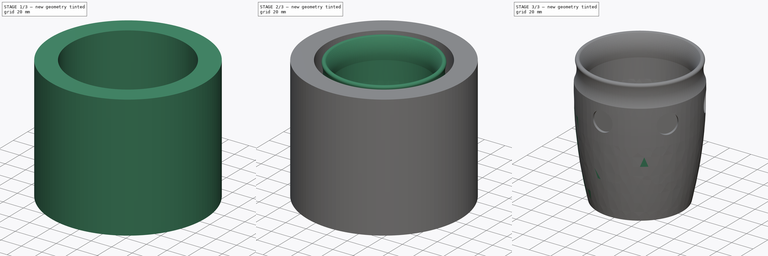
[diagram: build sequence overview — one tinted view per stage of 3, left to right]
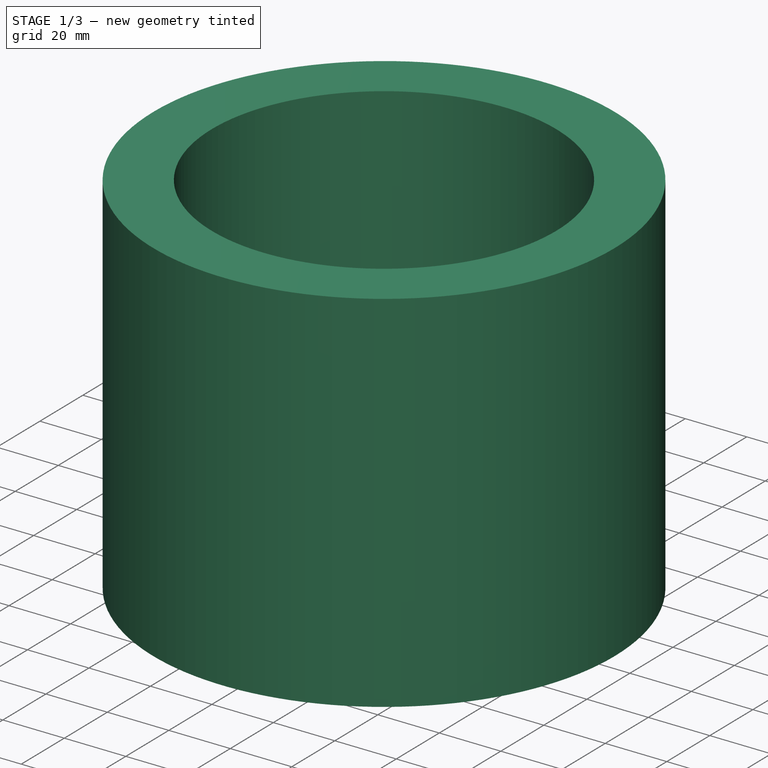
[diagram: stage 1 of 3 — iso view after this stage's code; geometry added in this stage tinted green]
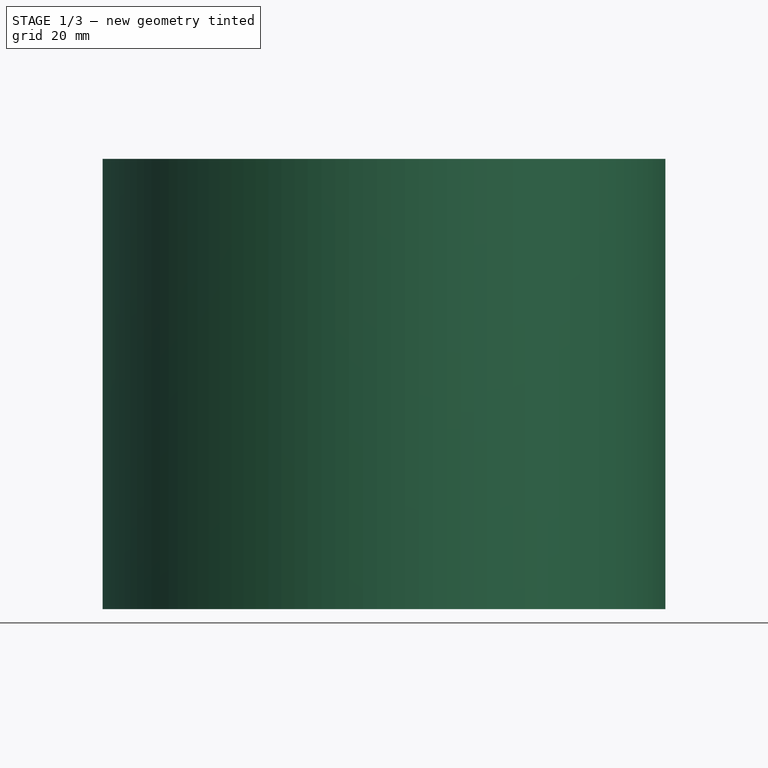
[diagram: stage 1 of 3 — front view after this stage's code; geometry added in this stage tinted green]
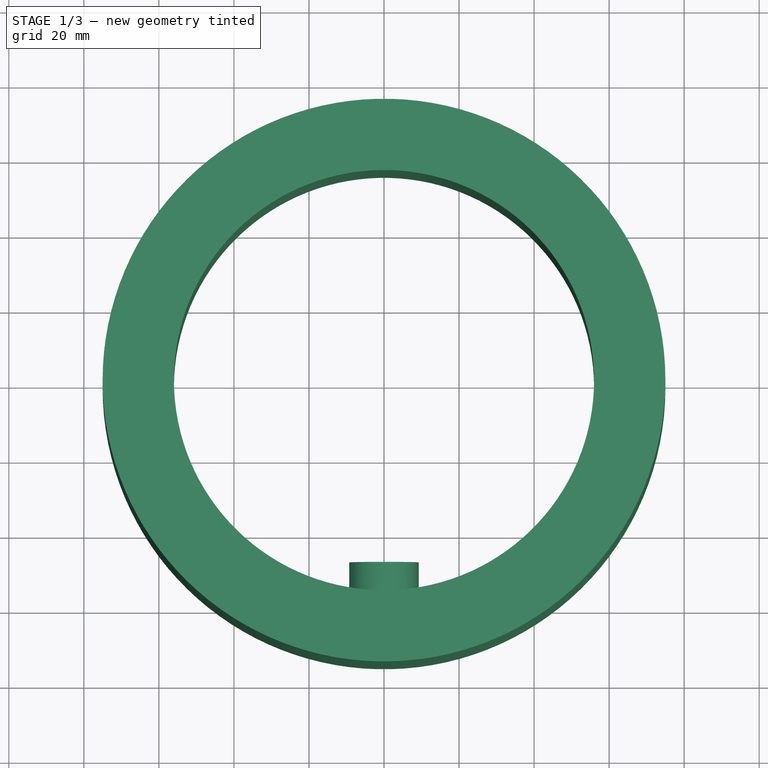
[diagram: stage 1 of 3 — top view after this stage's code; geometry added in this stage tinted green]
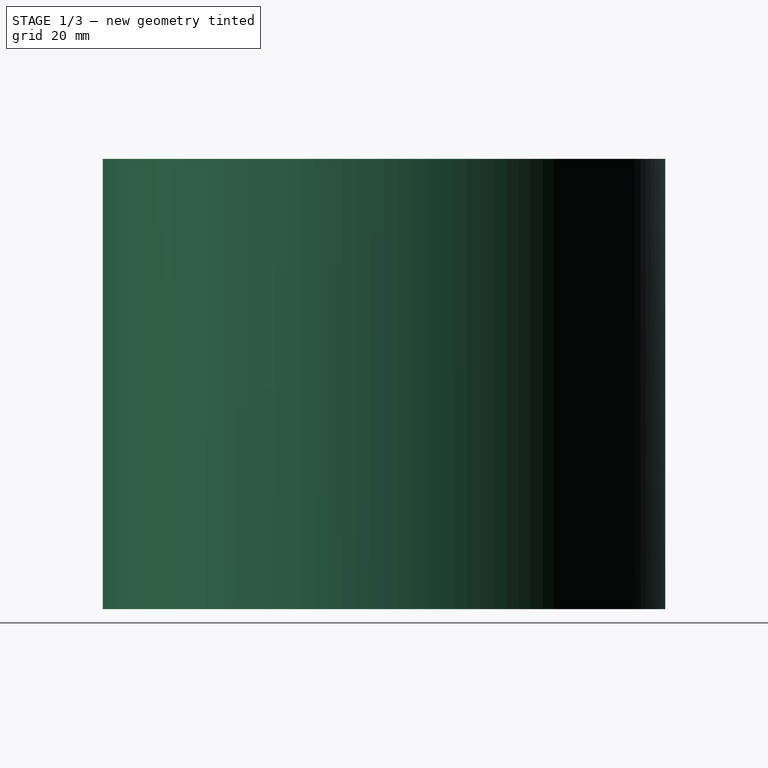
[diagram: stage 1 of 3 — right view after this stage's code; geometry added in this stage tinted green]
FCSTD DOCUMENT  (FreeCAD 0.19R22164 (Git))
Label: mug_test_001
License: All rights reserved
LicenseURL: http://en.wikipedia.org/wiki/All_rights_reserved
objects: Sketcher::SketchObject×3, PartDesign::Pad×2, PartDesign::Body×2, PartDesign::Revolution×1, PartDesign::PolarPattern×1, PartDesign::Boolean×1, PartDesign::Thickness×1
note: 15 computed .brp shape members not serialized (recipe doc carries the construction recipe); baked Part::Feature solids carry a one-line shape summary decoded from their .brp

FEATURE [Sketcher::SketchObject] Sketch001
  AttachmentOffset = pos=(0,0,60) rot=(0,0,1;0rad)
  MapMode = 5
  Placement = pos=(0,-60,-1.33e-14) rot=(1,0,0;1.5708rad)
  Support = -> [XZ_Plane001]
  sketch-geometry (1):
    g0: Circle CenterX=0 CenterY=84.8438 CenterZ=0 NormalX=0 NormalY=0 NormalZ=1 AngleXU=0 Radius=9.26107
  constraints (1):
    c: PointOnObject(g0,g-2)
FEATURE [Sketcher::SketchObject] Sketch002
  MapMode = 5
  Support = -> [XY_Plane001]
  sketch-geometry (2):
    g0: Circle CenterX=0 CenterY=0 CenterZ=0 NormalX=0 NormalY=0 NormalZ=1 AngleXU=0 Radius=75
    g1: Circle CenterX=0 CenterY=0 CenterZ=0 NormalX=0 NormalY=0 NormalZ=1 AngleXU=0 Radius=56
  constraints (4):
    c: Coincident(g0,g-1)
    c: Coincident(g1,g0)
    c: Radius(g1) = 56
    c: Radius(g0) = 75
FEATURE [PartDesign::Pad] Pad
  Length = 12
  Length2 = 100
  Placement = pos=(0,0,0) rot=(1,0,0;1.5708rad)
  Profile = -> Sketch001
  Reversed = true
  Type = 0
FEATURE [PartDesign::Pad] Pad001
  BaseFeature = -> Pad
  Length = 120
  Length2 = 100
  Placement = pos=(0,0,0) rot=(1,0,0;1.5708rad)
  Profile = -> Sketch002
  Type = 0
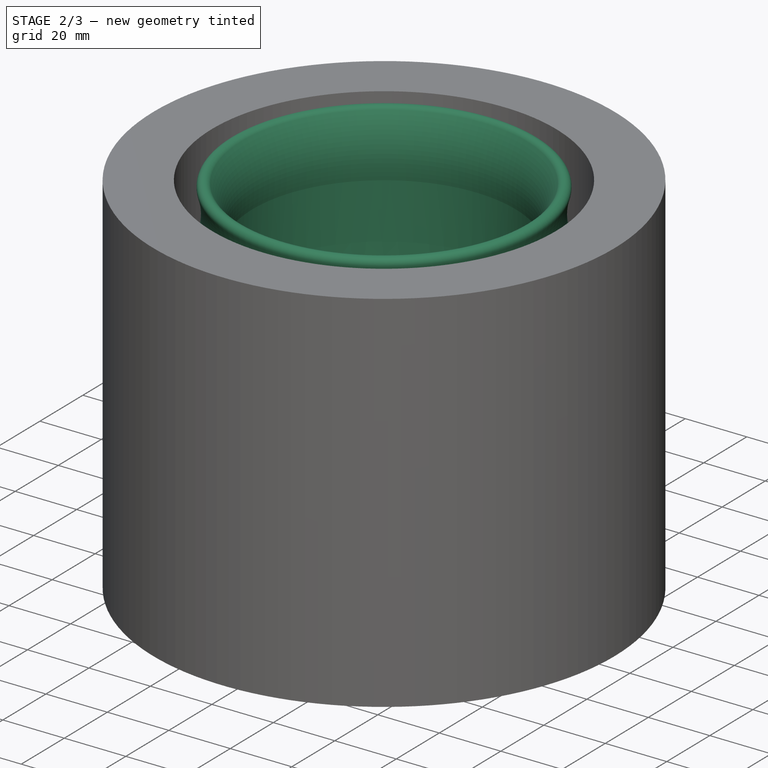
[diagram: stage 2 of 3 — iso view after this stage's code; geometry added in this stage tinted green]
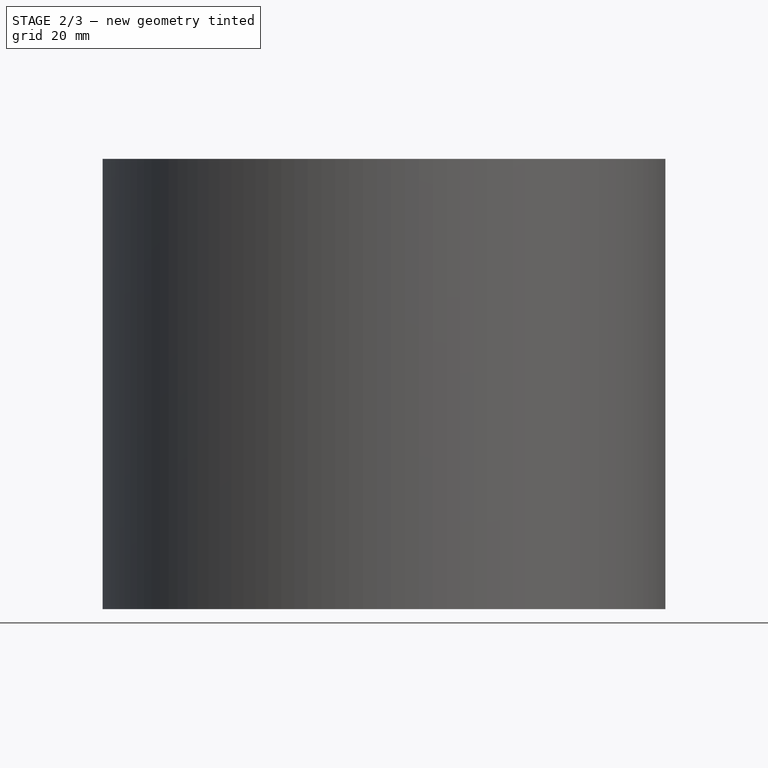
[diagram: stage 2 of 3 — front view after this stage's code; geometry added in this stage tinted green]
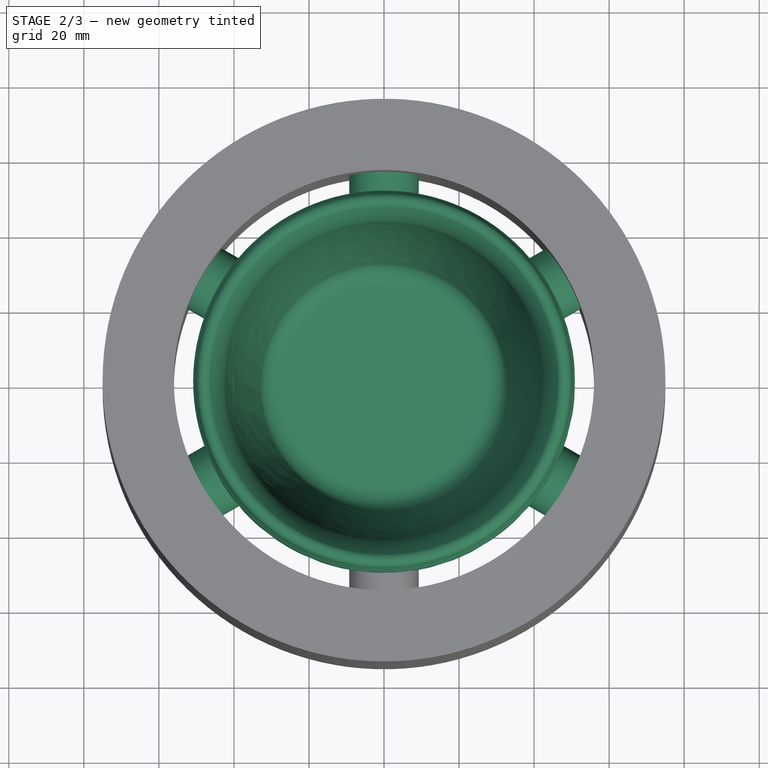
[diagram: stage 2 of 3 — top view after this stage's code; geometry added in this stage tinted green]
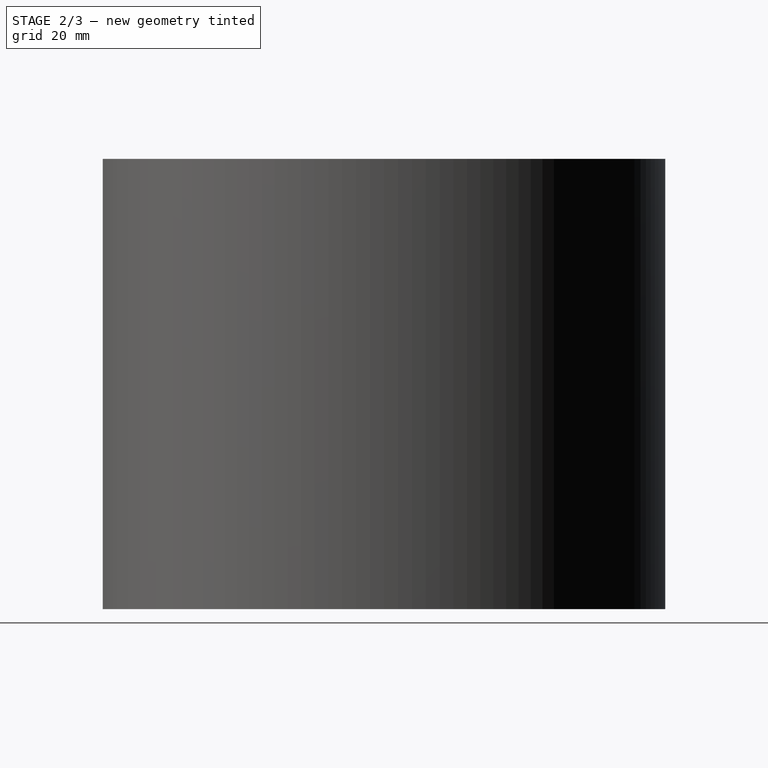
[diagram: stage 2 of 3 — right view after this stage's code; geometry added in this stage tinted green]
FEATURE [Sketcher::SketchObject] Sketch
  MapMode = 5
  Placement = pos=(0,0,0) rot=(1,0,0;1.5708rad)
  Support = -> [XZ_Plane]
  sketch-geometry (11):
    g0: ArcOfCircle CenterX=-349.062 CenterY=92.9007 CenterZ=0 NormalX=0 NormalY=0 NormalZ=1 AngleXU=0 Radius=400 StartAngle=6.04879 EndAngle=6.30093
    g1: ArcOfCircle CenterX=73.7876 CenterY=110 CenterZ=0 NormalX=0 NormalY=0 NormalZ=1 AngleXU=0 Radius=25 StartAngle=2.84078 EndAngle=3.55311
    g2: LineSegment [constr] StartX=0 StartY=120 StartZ=0 EndX=56 EndY=120 EndZ=0
    g3: ArcOfCircle CenterX=68.7503 CenterY=105 CenterZ=0 NormalX=0 NormalY=0 NormalZ=1 AngleXU=0 Radius=26.4862 StartAngle=2.58192 EndAngle=3.33151
    g4: ArcOfCircle CenterX=48 CenterY=118 CenterZ=0 NormalX=0 NormalY=0 NormalZ=1 AngleXU=0 Radius=2 StartAngle=5.98237 EndAngle=8.8651
    g5: LineSegment [constr] StartX=50 StartY=122.03 StartZ=0 EndX=50 EndY=114.486 EndZ=0
    g6: ArcOfCircle CenterX=-357.26 CenterY=100.066 CenterZ=0 NormalX=0 NormalY=0 NormalZ=1 AngleXU=0 Radius=400 StartAngle=6.06037 EndAngle=6.28302
    g7: LineSegment StartX=0 StartY=7 StartZ=0 EndX=27 EndY=7 EndZ=0
    g8: ArcOfCircle CenterX=27 CenterY=13 CenterZ=0 NormalX=0 NormalY=0 NormalZ=1 AngleXU=0 Radius=6 StartAngle=4.71239 EndAngle=6.06037
    g9: LineSegment StartX=40 StartY=1.137e-13 StartZ=0 EndX=0 EndY=1.137e-13 EndZ=0
    g10: LineSegment StartX=0 StartY=1.137e-13 StartZ=0 EndX=0 EndY=7 EndZ=0
  constraints (35):
    c: Radius(g0) = 400
    c: DistanceY(g0,g-1) = 0
    c: DistanceX(g-1,g0) = 40
    c: Radius(g1) = 25
    c: DistanceY(g-1,g1) = 110
    c: PointOnObject(g2,g-2)
    c: Horizontal(g2)
    c: DistanceY(g-1,g2) = 120
    c: Coincident(g1,g0)
    c: DistanceY(g-1,g0) = 100
    c: Coincident(g1,g4)
    c: Tangent(g4,g1)
    c: Tangent(g4,g3)
    c: Coincident(g3,g4)
    c: Tangent(g4,g2)
    c: Vertical(g5)
    c: Tangent(g4,g5)
    c: DistanceX(g2,g5) = 50
    c: Radius(g4) = 2
    c: Equal(g0,g6) = 400
    c: PointOnObject(g7,g-2)
    c: Horizontal(g7)
    c: DistanceY(g-1,g7) = 7
    c: Tangent(g7,g8) = -1.5708
    c: Tangent(g6,g8) = -1.5708
    c: Coincident(g9,g0)
    c: Horizontal(g9)
    c: Coincident(g10,g9)
    c: Coincident(g10,g7)
    c: Coincident(g6,g3)
    c: DistanceY(g9,g3) = 100
    c: Radius(g8) = 6
    c: Vertical(g10)
    c: DistanceY(g9,g3) = 105
    c: DistanceX(g8) = 27
FEATURE [PartDesign::Revolution] Revolution
  Angle = 360
  Axis = (0,2e-16,1)
  Base = (0,0,0)
  Placement = pos=(0,0,0) rot=(1,0,0;1.5708rad)
  Profile = -> Sketch
  ReferenceAxis = -> Sketch [V_Axis]
  Reversed = true
FEATURE [PartDesign::PolarPattern] PolarPattern
  Angle = 360
  Axis = -> Z_Axis001
  BaseFeature = -> Pad001
  Occurrences = 6
  Originals = -> [Pad]
  Placement = pos=(0,0,0) rot=(1,0,0;1.5708rad)
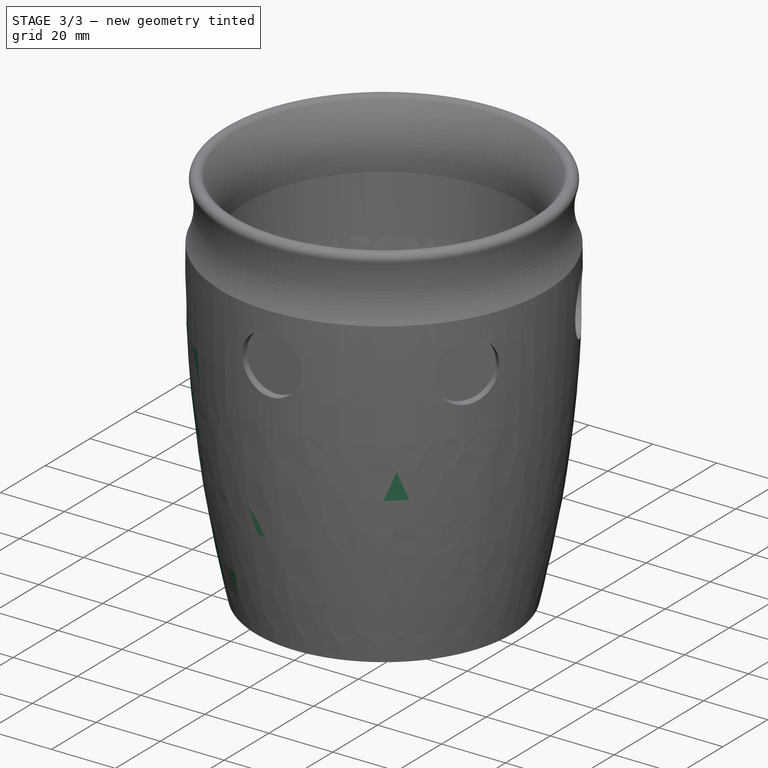
[diagram: stage 3 of 3 — iso view after this stage's code; geometry added in this stage tinted green]
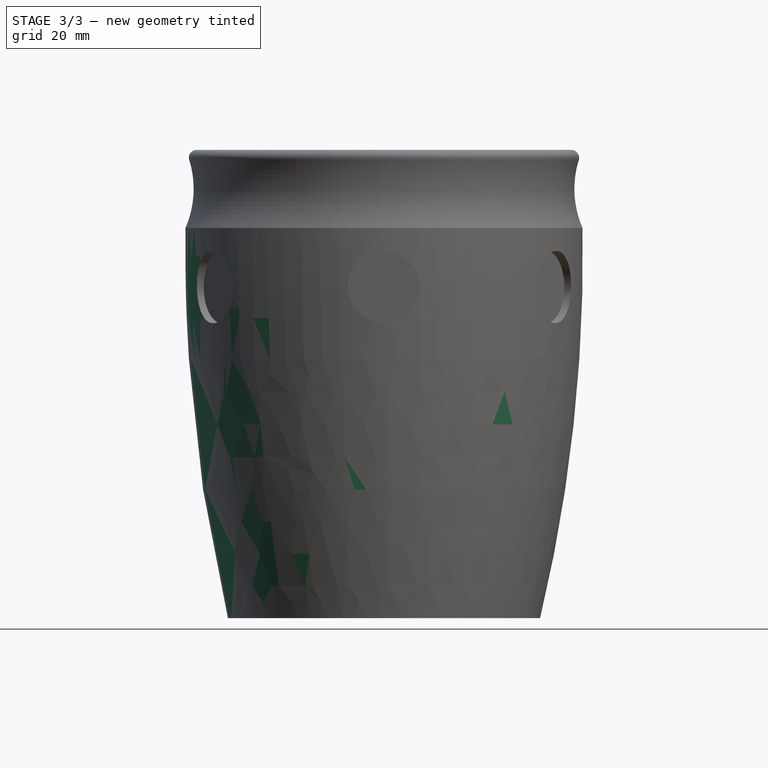
[diagram: stage 3 of 3 — front view after this stage's code; geometry added in this stage tinted green]
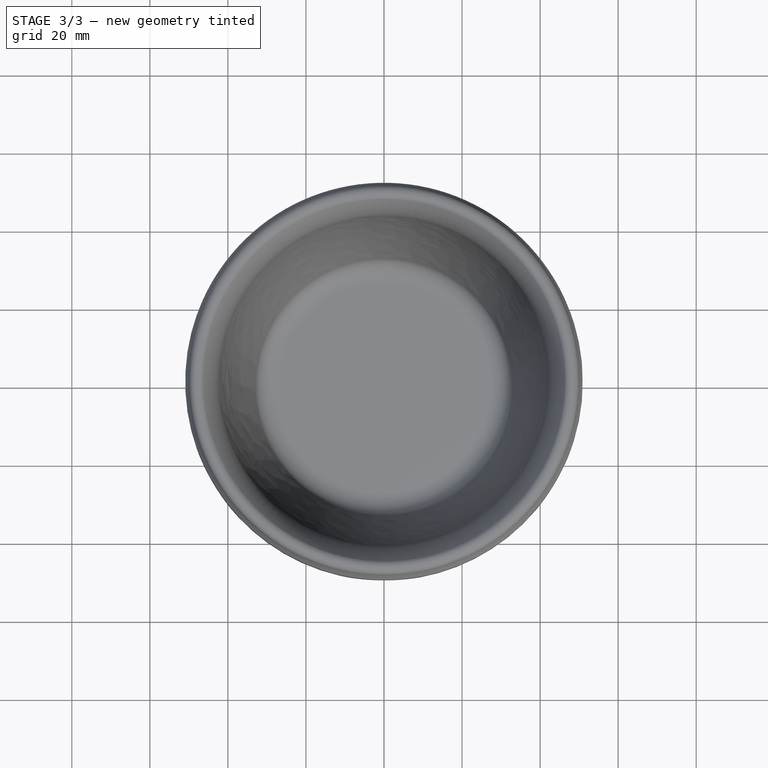
[diagram: stage 3 of 3 — top view after this stage's code; geometry added in this stage tinted green]
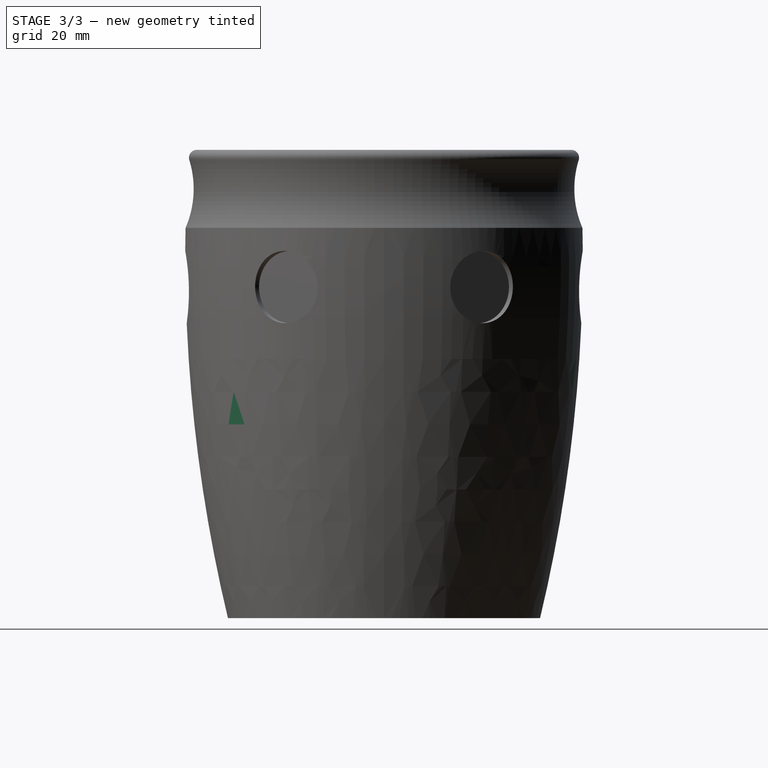
[diagram: stage 3 of 3 — right view after this stage's code; geometry added in this stage tinted green]
FEATURE [PartDesign::Body] Body001
  Group = -> [Sketch002,Sketch001,Pad,Pad001,PolarPattern]
  Origin = -> Origin001
  Tip = -> PolarPattern
FEATURE [PartDesign::Boolean] Boolean
  BaseFeature = -> Revolution
  Group = -> [Body001]
  Type = 1
FEATURE [PartDesign::Thickness] Thickness
  Base = -> Boolean [Face3]
  BaseFeature = -> Boolean
  Intersection = false
  Join = 0
  Mode = 0
  Reversed = true
  SupportTransform = false
  Value = 1
FEATURE [PartDesign::Body] Body
  Group = -> [Sketch,Revolution,Boolean,Thickness]
  Origin = -> Origin
  Tip = -> Thickness
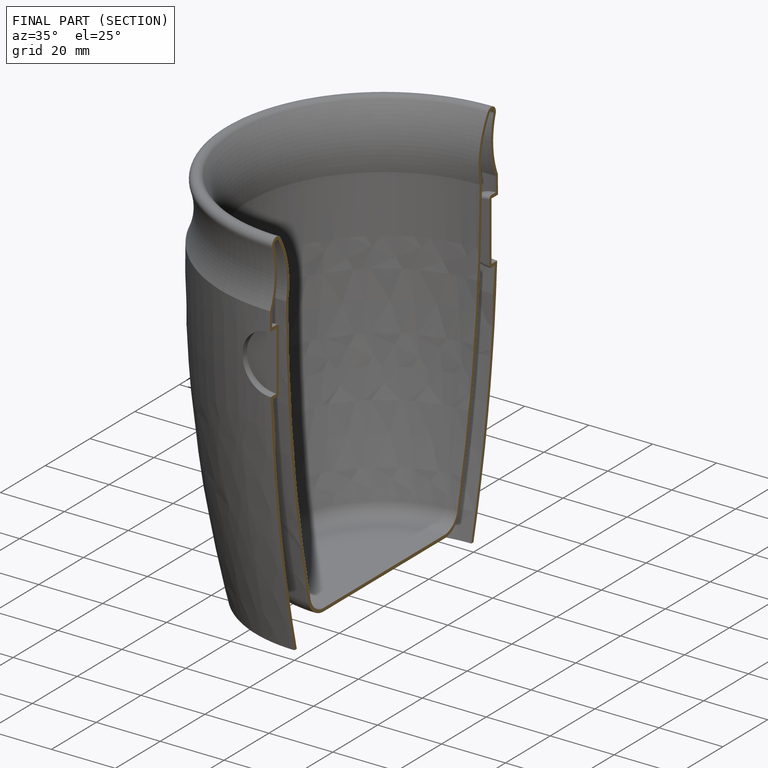
[diagram: finished part — half-section view (interior)]
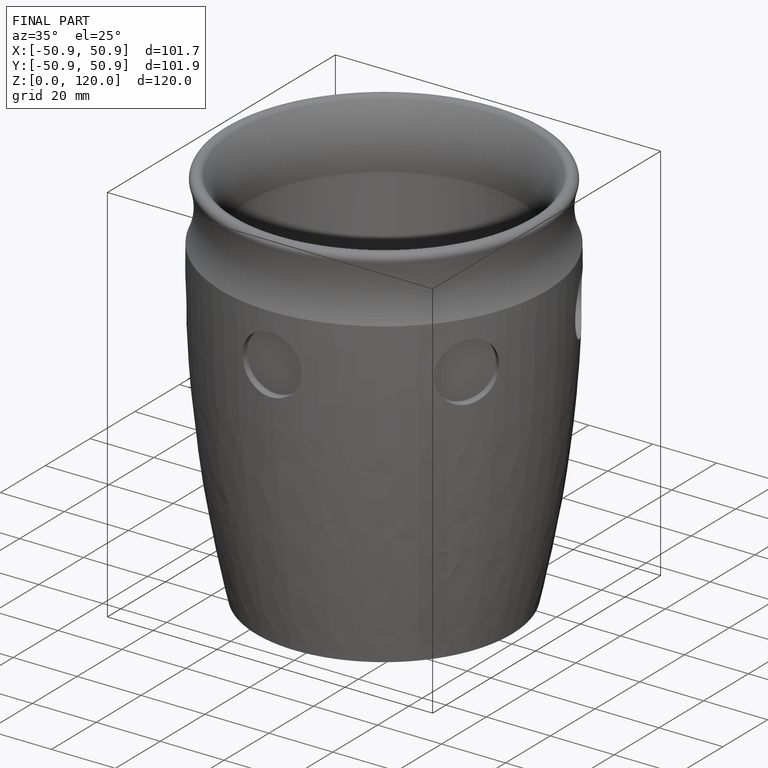
[diagram: finished part — iso view with bounding-box wireframe]
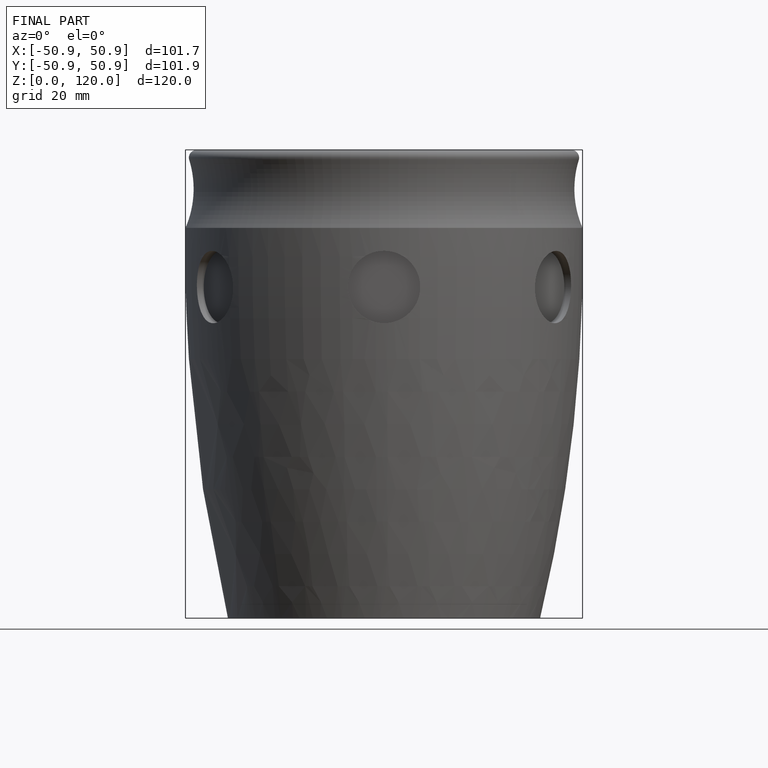
[diagram: finished part — front view with bounding-box wireframe]
